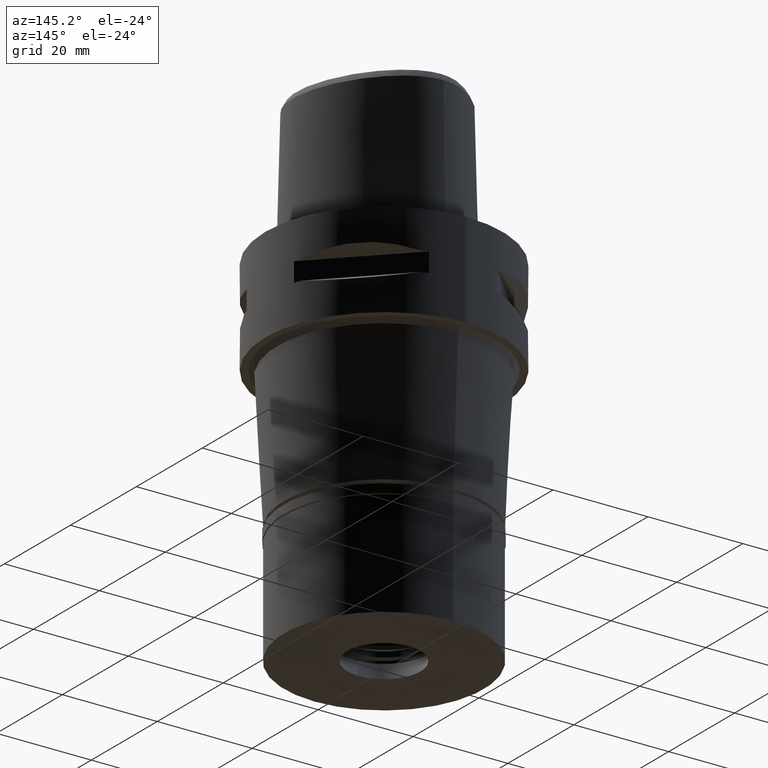
[diagram: clean part render]
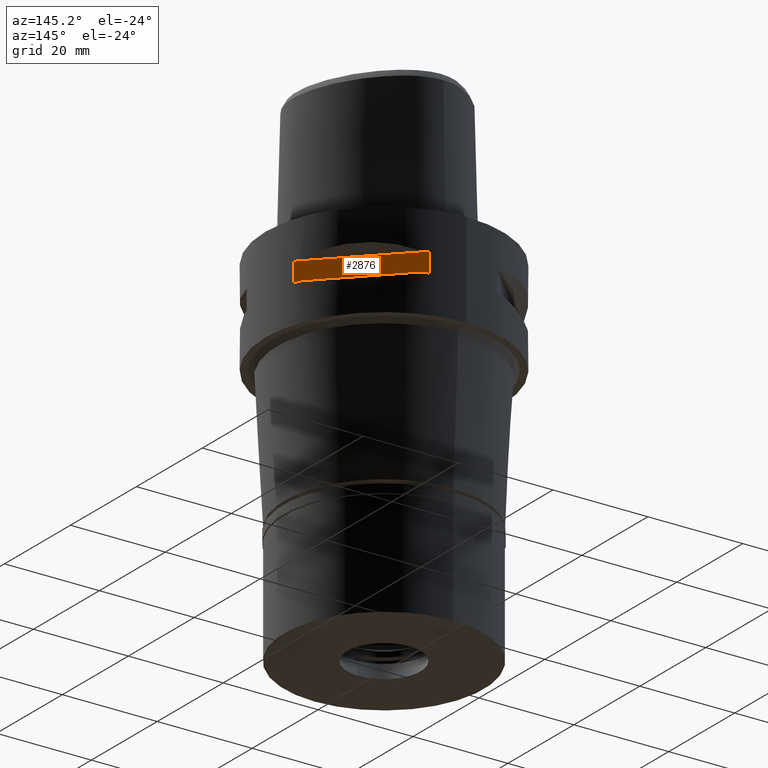
[diagram: same view with one face highlighted and labeled with its STEP entity id]
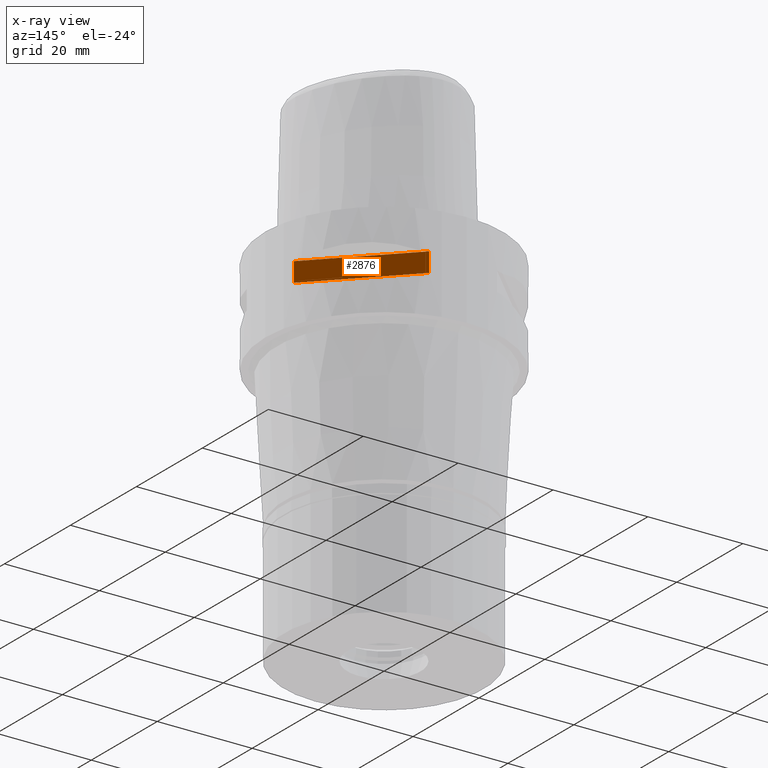
[diagram: x-ray of the same camera — body ghosted, the highlighted face saturated]
A machine part, auxiliary view. The second image highlights one B-rep face of the part: STEP entity #2876.
The next image is the same camera in x-ray: the body ghosted, the highlighted face saturated — about 0% of this face is hidden behind the body in this view.
In plain terms, the highlighted planar face has unit normal (-0.7071, -0.7071, 0).
Its self-contained STEP definition (entity closure, byte-faithful):
#105 = DIRECTION ( 'NONE',  ( -0.7071067811865474617, 0.7071067811865474617, 0.0000000000000000000 ) ) ;
#439 = DIRECTION ( 'NONE',  ( -0.7071067811865474617, 0.7071067811865474617, 0.0000000000000000000 ) ) ;
#631 = CARTESIAN_POINT ( 'NONE',  ( 7.159921374230999724, 23.95277699797999915, -12.05000000000000071 ) ) ;
#931 = VECTOR ( 'NONE', #3705, 1000.000000000000000 ) ;
#1072 = CARTESIAN_POINT ( 'NONE',  ( 7.159921374230999724, 23.95277699797999915, -7.950000000000000178 ) ) ;
#1159 = EDGE_CURVE ( 'NONE', #1442, #1851, #2386, .T. ) ;
#1226 = CARTESIAN_POINT ( 'NONE',  ( 4.949747468305999654, 26.16295090389999700, -7.950000000000000178 ) ) ;
#1430 = ORIENTED_EDGE ( 'NONE', *, *, #3936, .T. ) ;
#1442 = VERTEX_POINT ( 'NONE', #4457 ) ;
#1679 = EDGE_CURVE ( 'NONE', #1913, #1851, #4129, .T. ) ;
#1711 = VECTOR ( 'NONE', #3766, 1000.000000000000000 ) ;
#1851 = VERTEX_POINT ( 'NONE', #1072 ) ;
#1913 = VERTEX_POINT ( 'NONE', #3685 ) ;
#2182 = ORIENTED_EDGE ( 'NONE', *, *, #1679, .T. ) ;
#2345 = VECTOR ( 'NONE', #105, 1000.000000000000114 ) ;
#2385 = FACE_OUTER_BOUND ( 'NONE', #4642, .T. ) ;
#2386 = LINE ( 'NONE', #3459, #2345 ) ;
#2542 = EDGE_CURVE ( 'NONE', #1442, #3681, #3308, .T. ) ;
#2609 = CARTESIAN_POINT ( 'NONE',  ( 23.95277699797999915, 7.159921374230999724, -7.950000000000000178 ) ) ;
#2727 = LINE ( 'NONE', #4606, #3106 ) ;
#2800 = ORIENTED_EDGE ( 'NONE', *, *, #1159, .F. ) ;
#2876 = ADVANCED_FACE ( 'NONE', ( #2385 ), #3506, .F. ) ;
#3001 = AXIS2_PLACEMENT_3D ( 'NONE', #1226, #3906, #3200 ) ;
#3106 = VECTOR ( 'NONE', #439, 1000.000000000000114 ) ;
#3200 = DIRECTION ( 'NONE',  ( -0.7071067811865475727, 0.7071067811865475727, 0.0000000000000000000 ) ) ;
#3308 = LINE ( 'NONE', #2609, #931 ) ;
#3459 = CARTESIAN_POINT ( 'NONE',  ( 23.95277699797999915, 7.159921374230999724, -7.950000000000000178 ) ) ;
#3506 = PLANE ( 'NONE',  #3001 ) ;
#3681 = VERTEX_POINT ( 'NONE', #4192 ) ;
#3685 = CARTESIAN_POINT ( 'NONE',  ( 7.159921374235000080, 23.95277699797999915, -12.05000000000000071 ) ) ;
#3705 = DIRECTION ( 'NONE',  ( 0.0000000000000000000, 0.0000000000000000000, -1.000000000000000000 ) ) ;
#3766 = DIRECTION ( 'NONE',  ( 0.0000000000000000000, 0.0000000000000000000, 1.000000000000000000 ) ) ;
#3906 = DIRECTION ( 'NONE',  ( -0.7071067811865475727, -0.7071067811865475727, 0.0000000000000000000 ) ) ;
#3936 = EDGE_CURVE ( 'NONE', #3681, #1913, #2727, .T. ) ;
#4129 = LINE ( 'NONE', #631, #1711 ) ;
#4192 = CARTESIAN_POINT ( 'NONE',  ( 23.95277699797999915, 7.159921374230999724, -12.05000000000000071 ) ) ;
#4457 = CARTESIAN_POINT ( 'NONE',  ( 23.95277699797999915, 7.159921374235000080, -7.950000000000000178 ) ) ;
#4606 = CARTESIAN_POINT ( 'NONE',  ( 23.95277699797999915, 7.159921374230999724, -12.05000000000000071 ) ) ;
#4642 = EDGE_LOOP ( 'NONE', ( #2800, #4828, #1430, #2182 ) ) ;
#4828 = ORIENTED_EDGE ( 'NONE', *, *, #2542, .T. ) ;